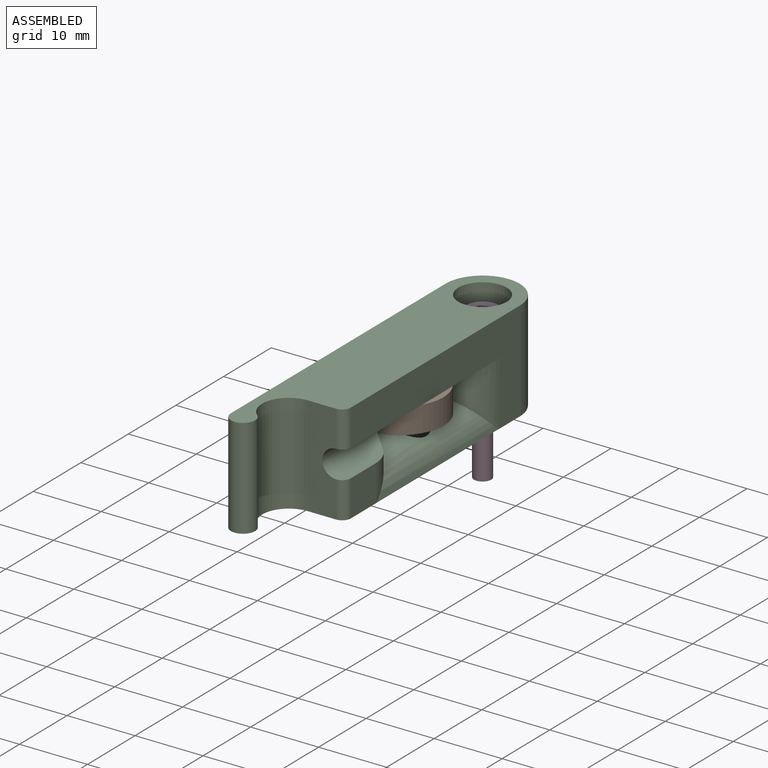
[diagram: assembled view]
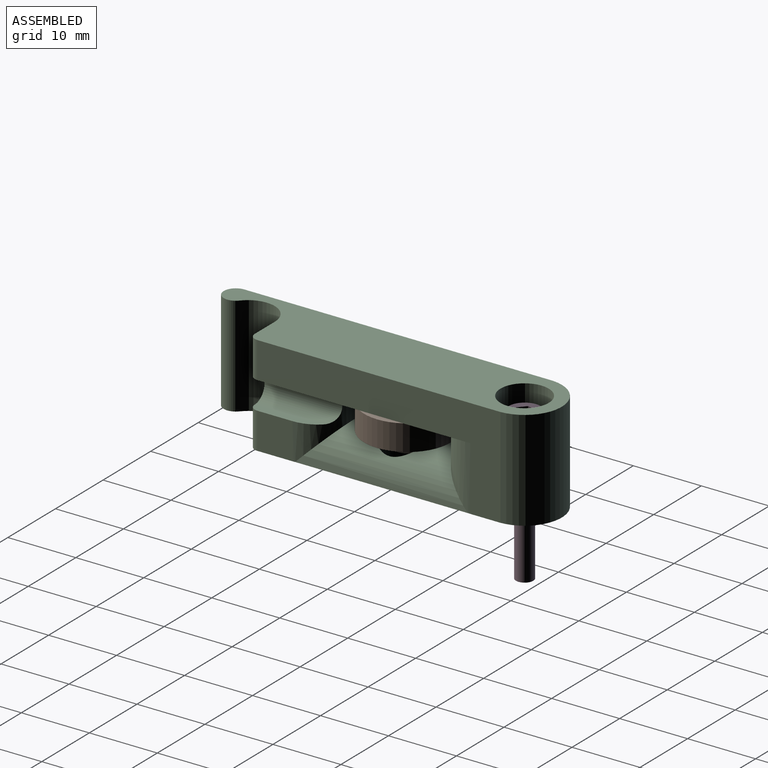
[diagram: assembled view, second angle]
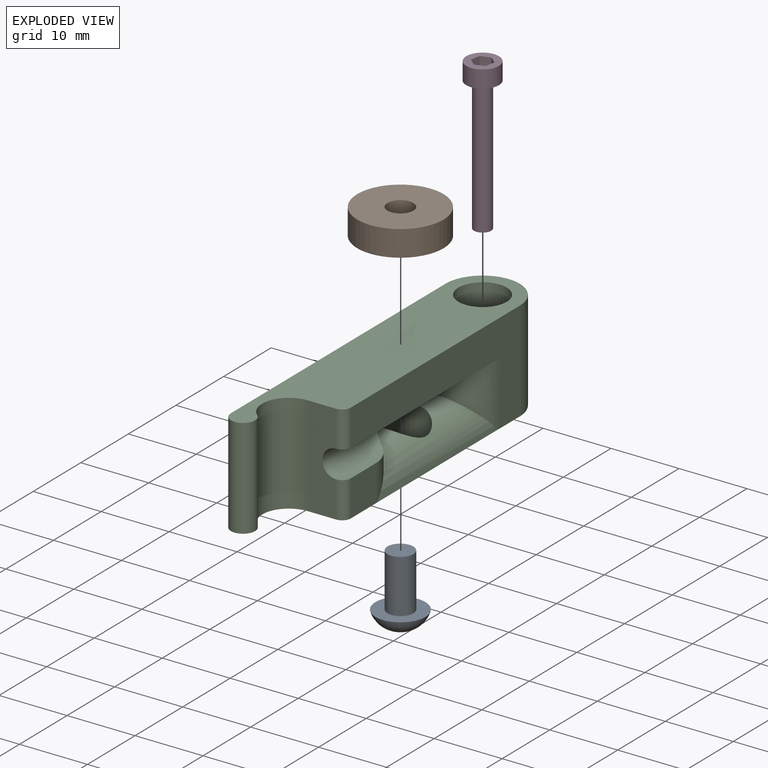
[diagram: exploded view]
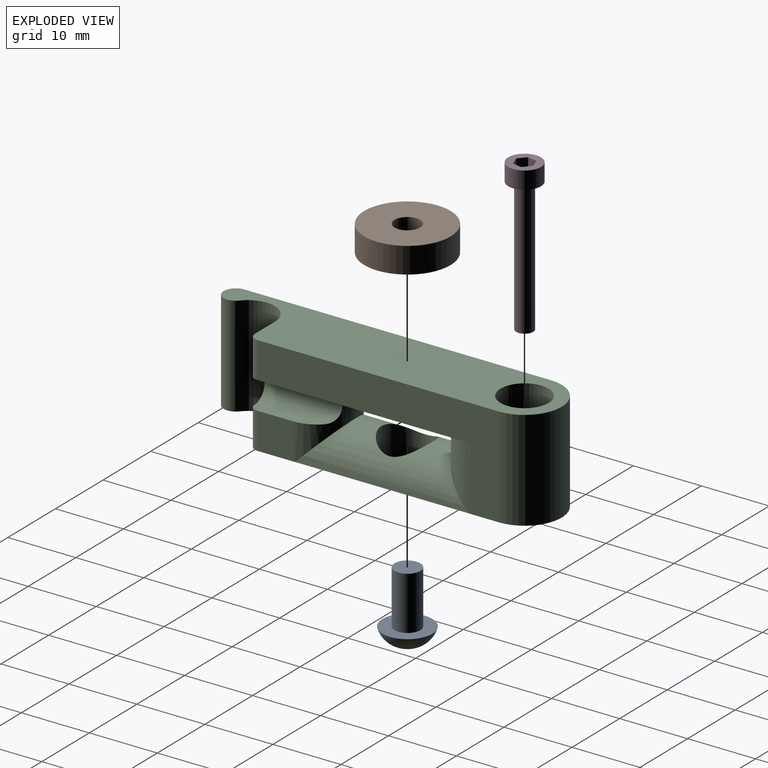
[diagram: exploded view, second angle]
ASSEMBLY  parts=4 mates=3
PART A: 11 faces, bbox 7.5x7.5x10.4 mm
  f0: cylinder r=1.91mm len=7.87mm, axis (0,0,-1), area 94.2mm2, adj f1,f2
  f1: plane 3.81x3.81mm, normal (0,0,-1), area 11.4mm2, adj f0
  f2: plane 7.37x7.37mm, normal (0,0,-1), area 31.2mm2, adj f0,f10
  f3: plane 1.85x1.4mm, normal (0.5,-0.87,0), area 2.9mm2, adj f4,f8,f9,f10
  f4: plane 1.85x1.61mm, normal (1,0,0), area 2.9mm2, adj f3,f5,f9,f10
  f5: plane 1.85x1.4mm, normal (0.5,0.87,0), area 2.9mm2, adj f4,f6,f9,f10
  f6: plane 1.85x1.4mm, normal (-0.5,0.87,0), area 2.9mm2, adj f5,f7,f9,f10
  f7: plane 1.97x1.74mm, normal (-1,0,0), area 2.9mm2, adj f6,f8,f9,f10
  f8: plane 1.85x1.4mm, normal (-0.5,-0.87,0), area 2.9mm2, adj f3,f7,f9,f10
  f9: plane 3.23x2.79mm, normal (0,0,1), area 6.8mm2, adj f3,f4,f5,f6,f7,f8
  f10: torus R=0.28mm, axis (0,0,-1), area 57.9mm2, adj f2,f3,f4,f5,f6,f7,f8
PART B: 4 faces, bbox 12.7x12.7x3.8 mm
  f0: cylinder r=1.91mm len=3.81mm, axis (0,0,-1), area 45.6mm2, adj f2,f3
  f1: cylinder r=6.35mm len=12.7mm, axis (0,0,-1), area 152mm2, adj f2,f3
  f2: plane 12.7x12.7mm, normal (0,0,1), area 115.3mm2, adj f0,f1
  f3: plane 12.7x12.7mm, normal (0,0,-1), area 115.3mm2, adj f0,f1
PART C: 25 faces, bbox 10.9x52.3x14.7 mm
  f0: plane 35.77x14.73mm, normal (1,0,0), area 232.6mm2, adj f2,f6,f11,f12,f14,f15
  f1: plane 14.73x4.19mm, normal (0,-1,0), area 55.3mm2, adj f2,f8,f9,f11,f12,f24
  f2: cylinder r=1.27mm len=5.33mm, axis (0,0,-1), area 10.6mm2, adj f0,f1,f11,f14
  f3: cylinder r=2.03mm len=4.06mm, axis (0,0,-1), area 0.3mm2, adj f13,f22
  f4: plane 45.35x14.73mm, normal (-1,0,0), area 422.2mm2, adj f6,f7,f11,f12,f14,f15,f16
  f5: plane 5.33x5.16mm, normal (1,0,0), area 27.5mm2, adj f9,f12,f16,f23
  f6: cylinder r=5.47mm len=14.73mm, axis (0,0,-1), area 244.9mm2, adj f0,f4,f11,f12
  f7: cylinder r=1.78mm len=14.73mm, axis (0,0,-1), area 105.1mm2, adj f4,f8,f11,f12
  f8: cylinder r=3.94mm len=14.73mm, axis (0,0,-1), area 141.6mm2, adj f1,f7,f11,f12
  f9: cylinder r=1.27mm len=5.33mm, axis (0,0,-1), area 10.6mm2, adj f1,f5,f12,f23
  f10: cylinder r=3.56mm len=7.11mm, axis (0,0,-1), area 102.2mm2, adj f11,f13
  f11: plane 52.32x10.92mm, normal (0,0,1), area 433.1mm2, adj f0,f1,f2,f4,f6,f7,f8,f10
  f12: plane 52.32x10.92mm, normal (0,0,-1), area 419.3mm2, adj f0,f1,f4,f5,f6,f7,f8,f9
  f13: plane 7.11x7.11mm, normal (0,0,1), area 26.8mm2, adj f3,f10
  f14: plane 32.6x10.92mm, normal (0,0,-1), area 193mm2, adj f0,f2,f4,f15,f16,f18,f24
  f15: cylinder r=5.46mm len=10.92mm, axis (0,0,-1), area 108mm2, adj f0,f4,f12,f14,f17
  f16: cylinder r=5.46mm len=10.92mm, axis (0,0,1), area 84.2mm2, adj f4,f5,f12,f14,f17,f23,f24
  f17: cylinder r=5.46mm len=25.4mm, axis (0,-1,0), area 260.8mm2, adj f12,f15,f16,f20
  f18: cylinder r=1.78mm len=3.76mm, axis (0,0,-1), area 42mm2, adj f14,f19
  f19: plane 3.56x3.56mm, normal (0,0,-1), area 9.9mm2, adj f18
  f20: cylinder r=3.81mm len=7.62mm, axis (0,0,-1), area 103.8mm2, adj f12,f17
  f21: cylinder r=1.52mm len=10.13mm, axis (0,0,-1), area 97mm2, adj f12,f22
  f22: plane 4.06x4.06mm, normal (0,0,1), area 5.7mm2, adj f3,f21
  f23: plane 9.93x1.27mm, normal (0,0,1), area 10.9mm2, adj f5,f9,f16,f24
  f24: cylinder r=2.03mm len=11.45mm, axis (0,-1,0), area 70.2mm2, adj f1,f14,f16,f23
PART D: 12 faces, bbox 4.8x4.8x22.2 mm
  f0: cylinder r=1.27mm len=19.66mm, axis (0,0,-1), area 156.9mm2, adj f1,f10
  f1: plane 2.54x2.54mm, normal (0,0,-1), area 5.1mm2, adj f0
  f2: plane 2.54x1.39mm, normal (-0.31,0.95,0), area 3.7mm2, adj f3,f7,f9,f11
  f3: plane 2.54x1.1mm, normal (0.66,0.75,0), area 3.7mm2, adj f2,f4,f9,f11
  f4: plane 2.54x1.44mm, normal (0.98,-0.2,0), area 3.7mm2, adj f3,f5,f9,f11
  f5: plane 2.54x1.39mm, normal (0.31,-0.95,0), area 3.7mm2, adj f4,f6,f9,f11
  f6: plane 2.54x1.1mm, normal (-0.66,-0.75,0), area 3.7mm2, adj f5,f7,f9,f11
  f7: plane 2.54x1.44mm, normal (-0.98,0.2,0), area 3.7mm2, adj f2,f6,f9,f11
  f8: cylinder r=2.41mm len=4.83mm, axis (0,0,-1), area 38.9mm2, adj f9,f10
  f9: plane 4.83x4.83mm, normal (0,0,1), area 12.7mm2, adj f2,f3,f4,f5,f6,f7,f8
  f10: plane 4.83x4.83mm, normal (0,0,-1), area 13.2mm2, adj f0,f8
  f11: plane 2.87x2.78mm, normal (0,0,1), area 5.6mm2, adj f2,f3,f4,f5,f6,f7
PLACE A rot(axis=(1,0,0),180deg) t=(-64.09,-2.73,8.87)mm
PLACE B rot(axis=(1,0,0),180deg) t=(-73.07,34.23,4.94)mm
PLACE C t=(-28.73,-4.14,-4.46)mm fixed
PLACE D t=(-47.48,-12.43,-13.99)mm
MATE revolute C.f18 <-> B.f0  axis (0,0,-1) through (-28.74,-0.32,4.94)mm
MATE cylindrical D.f0 <-> C.f3  axis (0,0,-1) through (-28.73,16.92,5.67)mm
MATE cylindrical C.f18 <-> A.f0  axis (0,0,-1) through (-28.74,-0.32,4.94)mm
